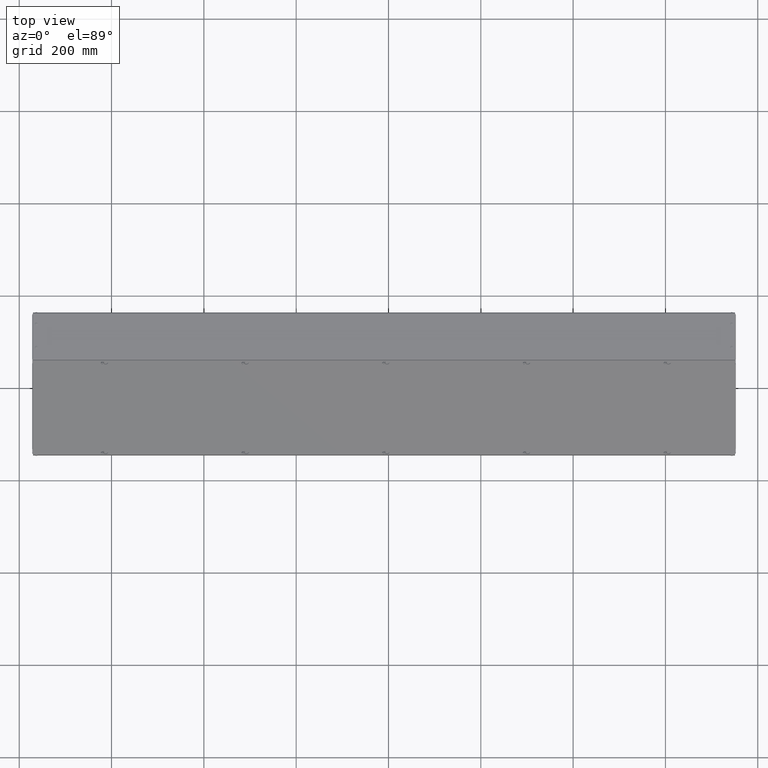
[diagram: clean part render]
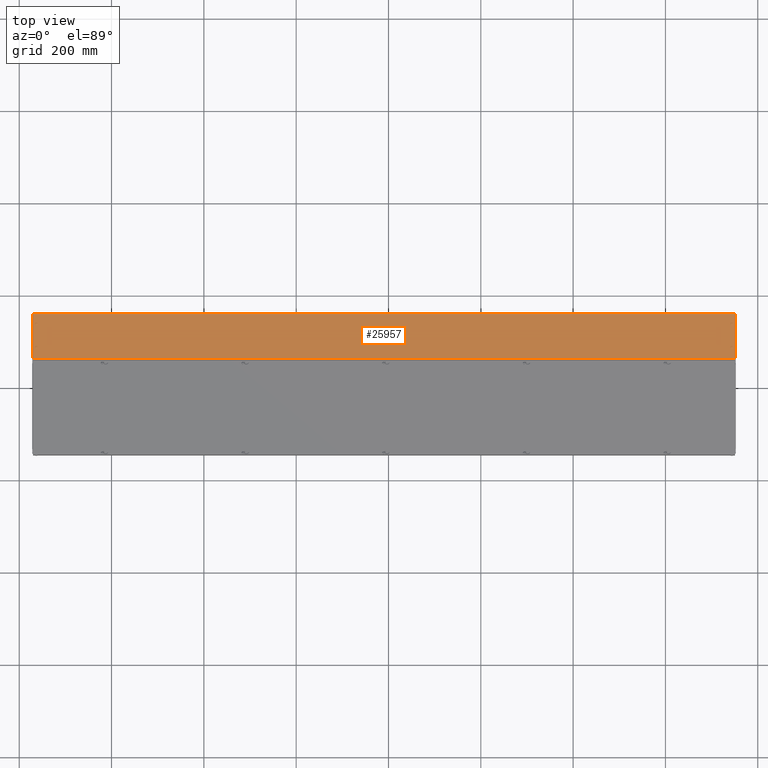
[diagram: same view with one face highlighted and labeled with its STEP entity id]
A machine part, top view. The second image highlights one B-rep face of the part: STEP entity #25957.
In plain terms, the highlighted planar face has unit normal (0, 0, 1).
Its self-contained STEP definition (entity closure, byte-faithful):
#1242 = VECTOR ( 'NONE', #27402, 39.37007874015748143 ) ;
#2030 = DIRECTION ( 'NONE',  ( 0.000000000000000000, 1.000000000000000000, -1.694169298396432862E-14 ) ) ;
#2815 = EDGE_CURVE ( 'NONE', #55557, #43516, #20926, .T. ) ;
#2878 = CIRCLE ( 'NONE', #10099, 0.06450000000000036260 ) ;
#3126 = DIRECTION ( 'NONE',  ( 0.000000000000000000, -9.450717383487159970E-15, -1.000000000000000000 ) ) ;
#3305 = EDGE_CURVE ( 'NONE', #105433, #72486, #99311, .T. ) ;
#3362 = VERTEX_POINT ( 'NONE', #65803 ) ;
#3626 = DIRECTION ( 'NONE',  ( 0.000000000000000000, 1.000000000000000000, -1.694169298396432862E-14 ) ) ;
#4112 = VERTEX_POINT ( 'NONE', #105849 ) ;
#4231 = AXIS2_PLACEMENT_3D ( 'NONE', #26990, #95260, #42786 ) ;
#6828 = DIRECTION ( 'NONE',  ( 0.000000000000000000, 1.000000000000000000, -1.694169298396432862E-14 ) ) ;
#7689 = VERTEX_POINT ( 'NONE', #15575 ) ;
#8084 = ORIENTED_EDGE ( 'NONE', *, *, #50781, .T. ) ;
#8481 = DIRECTION ( 'NONE',  ( 0.000000000000000000, 1.000000000000000000, -1.694169298396432862E-14 ) ) ;
#9028 = CARTESIAN_POINT ( 'NONE',  ( 29.33739738715530621, 5.296556077333148593, 8.999999999999998224 ) ) ;
#9196 = DIRECTION ( 'NONE',  ( 1.000000000000000000, 1.940385667701540060E-16, 5.840109280818809648E-17 ) ) ;
#9658 = EDGE_CURVE ( 'NONE', #15030, #33999, #64803, .T. ) ;
#10099 = AXIS2_PLACEMENT_3D ( 'NONE', #29928, #72000, #28249 ) ;
#10942 = CARTESIAN_POINT ( 'NONE',  ( -30.03960261284468913, 3.225556077333143090, 8.999999999999998224 ) ) ;
#11180 = EDGE_CURVE ( 'NONE', #3362, #31673, #73576, .T. ) ;
#11498 = DIRECTION ( 'NONE',  ( 0.000000000000000000, -9.450717383487159970E-15, -1.000000000000000000 ) ) ;
#11620 = DIRECTION ( 'NONE',  ( 0.000000000000000000, -9.450717383487159970E-15, -1.000000000000000000 ) ) ;
#12351 = CARTESIAN_POINT ( 'NONE',  ( 29.33739738715529555, 3.225556077333147975, 8.999999999999998224 ) ) ;
#13523 = VERTEX_POINT ( 'NONE', #17853 ) ;
#13706 = CARTESIAN_POINT ( 'NONE',  ( -30.32085261284468913, 6.124556077333132009, 8.999999999999998224 ) ) ;
#13829 = CARTESIAN_POINT ( 'NONE',  ( 29.27289738715530731, 5.225556077333152416, 8.999999999999998224 ) ) ;
#14460 = EDGE_CURVE ( 'NONE', #72486, #13523, #85357, .T. ) ;
#14609 = ORIENTED_EDGE ( 'NONE', *, *, #9658, .T. ) ;
#14864 = VECTOR ( 'NONE', #59589, 39.37007874015748143 ) ;
#15030 = VERTEX_POINT ( 'NONE', #82630 ) ;
#15257 = CARTESIAN_POINT ( 'NONE',  ( 29.27289738715530731, 3.296556077333153034, 8.999999999999998224 ) ) ;
#15574 = CARTESIAN_POINT ( 'NONE',  ( -29.97510261284469024, 5.296556077333137935, 8.999999999999998224 ) ) ;
#15575 = CARTESIAN_POINT ( 'NONE',  ( -30.10410261284469158, 3.296556077333138823, 8.999999999999998224 ) ) ;
#16249 = CARTESIAN_POINT ( 'NONE',  ( 29.27289738715530731, 3.225556077333152860, 8.999999999999998224 ) ) ;
#16465 = CARTESIAN_POINT ( 'NONE',  ( -29.97510261284469024, 3.296556077333143264, 8.999999999999998224 ) ) ;
#17008 = LINE ( 'NONE', #16465, #14864 ) ;
#17210 = LINE ( 'NONE', #34014, #62114 ) ;
#17347 = ORIENTED_EDGE ( 'NONE', *, *, #52771, .T. ) ;
#17853 = CARTESIAN_POINT ( 'NONE',  ( 29.55414738715530731, 6.124556077333145332, 9.000000000000003553 ) ) ;
#18326 = CARTESIAN_POINT ( 'NONE',  ( 29.55414738715530731, 2.317596228597067931, 9.000000000000007105 ) ) ;
#18621 = PLANE ( 'NONE',  #4231 ) ;
#19393 = EDGE_CURVE ( 'NONE', #45125, #98478, #27276, .T. ) ;
#19884 = DIRECTION ( 'NONE',  ( 0.000000000000000000, 1.000000000000000000, -1.694169298396432862E-14 ) ) ;
#20376 = VECTOR ( 'NONE', #100293, 39.37007874015748143 ) ;
#20620 = CARTESIAN_POINT ( 'NONE',  ( 29.27289738715530731, 5.361056077333152814, 8.999999999999998224 ) ) ;
#20721 = EDGE_CURVE ( 'NONE', #7689, #15030, #75574, .T. ) ;
#20926 = CIRCLE ( 'NONE', #42428, 0.06450000000000036260 ) ;
#21274 = EDGE_CURVE ( 'NONE', #13523, #72244, #83921, .T. ) ;
#21300 = ORIENTED_EDGE ( 'NONE', *, *, #27215, .T. ) ;
#22420 = AXIS2_PLACEMENT_3D ( 'NONE', #72636, #89855, #44649 ) ;
#22945 = LINE ( 'NONE', #57190, #109426 ) ;
#23025 = CARTESIAN_POINT ( 'NONE',  ( -30.32085261284468913, 2.317596228597059493, 9.000000000000007105 ) ) ;
#23645 = ORIENTED_EDGE ( 'NONE', *, *, #104315, .T. ) ;
#24790 = FACE_OUTER_BOUND ( 'NONE', #39178, .T. ) ;
#25427 = CARTESIAN_POINT ( 'NONE',  ( -0.3833526128446899661, 6.124556077333137338, 9.000000000000003553 ) ) ;
#25568 = AXIS2_PLACEMENT_3D ( 'NONE', #13829, #11620, #80476 ) ;
#25957 = ADVANCED_FACE ( 'NONE', ( #43336, #42257, #33784, #51167, #24790 ), #18621, .T. ) ;
#26990 = CARTESIAN_POINT ( 'NONE',  ( -0.3833526128446851367, 4.261072885695642576, 8.999999999999998224 ) ) ;
#27168 = AXIS2_PLACEMENT_3D ( 'NONE', #54675, #104949, #3626 ) ;
#27215 = EDGE_CURVE ( 'NONE', #31673, #53770, #38699, .T. ) ;
#27276 = LINE ( 'NONE', #102903, #109197 ) ;
#27402 = DIRECTION ( 'NONE',  ( -1.578109394559200017E-13, 1.000000000000000000, -0.000000000000000000 ) ) ;
#28249 = DIRECTION ( 'NONE',  ( 0.000000000000000000, 1.000000000000000000, -1.694169298396432862E-14 ) ) ;
#28416 = CIRCLE ( 'NONE', #82056, 0.06450000000000036260 ) ;
#29386 = DIRECTION ( 'NONE',  ( 0.000000000000000000, 1.000000000000000000, -1.694169298396432862E-14 ) ) ;
#29928 = CARTESIAN_POINT ( 'NONE',  ( 29.27289738715530731, 5.296556077333153034, 8.999999999999998224 ) ) ;
#30924 = DIRECTION ( 'NONE',  ( -1.387264802325759941E-13, 1.000000000000000000, -0.000000000000000000 ) ) ;
#31673 = VERTEX_POINT ( 'NONE', #74873 ) ;
#32001 = CARTESIAN_POINT ( 'NONE',  ( -30.03960261284468913, 5.296556077333143264, 8.999999999999998224 ) ) ;
#32167 = CARTESIAN_POINT ( 'NONE',  ( -30.10410261284468803, 3.225556077333138649, 8.999999999999998224 ) ) ;
#32374 = DIRECTION ( 'NONE',  ( 0.000000000000000000, -9.450717383487159970E-15, -1.000000000000000000 ) ) ;
#32553 = ORIENTED_EDGE ( 'NONE', *, *, #65456, .T. ) ;
#33029 = VECTOR ( 'NONE', #9196, 39.37007874015748143 ) ;
#33201 = AXIS2_PLACEMENT_3D ( 'NONE', #15257, #56214, #6828 ) ;
#33784 = FACE_BOUND ( 'NONE', #65238, .T. ) ;
#33999 = VERTEX_POINT ( 'NONE', #78424 ) ;
#34014 = CARTESIAN_POINT ( 'NONE',  ( 29.20839738715530842, 3.225556077333152860, 8.999999999999998224 ) ) ;
#34210 = CARTESIAN_POINT ( 'NONE',  ( -30.32085261284468913, 6.124556077333134674, 8.999999999999998224 ) ) ;
#34510 = CARTESIAN_POINT ( 'NONE',  ( -29.97510261284469735, 5.225556077333138205, 8.999999999999998224 ) ) ;
#34711 = DIRECTION ( 'NONE',  ( -1.573904515877000109E-13, -1.000000000000000000, -0.000000000000000000 ) ) ;
#34721 = DIRECTION ( 'NONE',  ( 0.000000000000000000, -9.450717383487159970E-15, -1.000000000000000000 ) ) ;
#35857 = LINE ( 'NONE', #103022, #1242 ) ;
#36365 = VERTEX_POINT ( 'NONE', #39749 ) ;
#36668 = VECTOR ( 'NONE', #30924, 39.37007874015748143 ) ;
#36852 = CIRCLE ( 'NONE', #108294, 0.06450000000000036260 ) ;
#36899 = DIRECTION ( 'NONE',  ( 0.000000000000000000, -9.450717383487159970E-15, -1.000000000000000000 ) ) ;
#37741 = ORIENTED_EDGE ( 'NONE', *, *, #2815, .T. ) ;
#37923 = CARTESIAN_POINT ( 'NONE',  ( 29.27289738715530731, 3.361056077333153258, 8.999999999999998224 ) ) ;
#38699 = CIRCLE ( 'NONE', #44129, 0.06450000000000036260 ) ;
#38826 = ORIENTED_EDGE ( 'NONE', *, *, #11180, .T. ) ;
#39178 = EDGE_LOOP ( 'NONE', ( #107763, #47431, #51478, #77669 ) ) ;
#39749 = CARTESIAN_POINT ( 'NONE',  ( 29.20839738715529776, 5.296556077333148593, 8.999999999999998224 ) ) ;
#42079 = EDGE_CURVE ( 'NONE', #43516, #65782, #43365, .T. ) ;
#42257 = FACE_BOUND ( 'NONE', #55062, .T. ) ;
#42428 = AXIS2_PLACEMENT_3D ( 'NONE', #109039, #32374, #66617 ) ;
#42786 = DIRECTION ( 'NONE',  ( 0.000000000000000000, -1.000000000000000000, 1.046871212840690179E-14 ) ) ;
#43336 = FACE_BOUND ( 'NONE', #82172, .T. ) ;
#43365 = LINE ( 'NONE', #94190, #101955 ) ;
#43516 = VERTEX_POINT ( 'NONE', #100248 ) ;
#44129 = AXIS2_PLACEMENT_3D ( 'NONE', #32001, #100280, #8481 ) ;
#44184 = DIRECTION ( 'NONE',  ( -1.573904515877000109E-13, -1.000000000000000000, -0.000000000000000000 ) ) ;
#44649 = DIRECTION ( 'NONE',  ( 0.000000000000000000, 1.000000000000000000, -1.694169298396432862E-14 ) ) ;
#45001 = DIRECTION ( 'NONE',  ( -1.573904515877000109E-13, -1.000000000000000000, -0.000000000000000000 ) ) ;
#45077 = EDGE_CURVE ( 'NONE', #83176, #7689, #64027, .T. ) ;
#45125 = VERTEX_POINT ( 'NONE', #9028 ) ;
#45729 = EDGE_CURVE ( 'NONE', #4112, #55557, #45811, .T. ) ;
#45811 = CIRCLE ( 'NONE', #33201, 0.06450000000000036260 ) ;
#47431 = ORIENTED_EDGE ( 'NONE', *, *, #3305, .F. ) ;
#47856 = CARTESIAN_POINT ( 'NONE',  ( -30.03960261284468913, 5.361056077333143044, 8.999999999999998224 ) ) ;
#50425 = ORIENTED_EDGE ( 'NONE', *, *, #20721, .T. ) ;
#50781 = EDGE_CURVE ( 'NONE', #84675, #102739, #22945, .T. ) ;
#51167 = FACE_BOUND ( 'NONE', #92500, .T. ) ;
#51478 = ORIENTED_EDGE ( 'NONE', *, *, #60899, .T. ) ;
#51496 = DIRECTION ( 'NONE',  ( -4.525148777687419622E-18, -1.000000000000000000, 6.137797495075951391E-34 ) ) ;
#52771 = EDGE_CURVE ( 'NONE', #102739, #3362, #65427, .T. ) ;
#53101 = AXIS2_PLACEMENT_3D ( 'NONE', #54157, #3126, #2030 ) ;
#53770 = VERTEX_POINT ( 'NONE', #47856 ) ;
#54157 = CARTESIAN_POINT ( 'NONE',  ( -30.03960261284468913, 5.296556077333143264, 8.999999999999998224 ) ) ;
#54417 = VECTOR ( 'NONE', #51496, 39.37007874015748143 ) ;
#54579 = EDGE_CURVE ( 'NONE', #68353, #4112, #17210, .T. ) ;
#54675 = CARTESIAN_POINT ( 'NONE',  ( -30.03960261284468913, 3.296556077333143264, 8.999999999999998224 ) ) ;
#55062 = EDGE_LOOP ( 'NONE', ( #23645, #58042, #59809, #110341, #80289 ) ) ;
#55155 = VERTEX_POINT ( 'NONE', #20620 ) ;
#55557 = VERTEX_POINT ( 'NONE', #37923 ) ;
#56190 = CARTESIAN_POINT ( 'NONE',  ( -30.10410261284468803, 3.225556077333143090, 8.999999999999998224 ) ) ;
#56214 = DIRECTION ( 'NONE',  ( 0.000000000000000000, -9.450717383487159970E-15, -1.000000000000000000 ) ) ;
#56383 = VERTEX_POINT ( 'NONE', #62384 ) ;
#57190 = CARTESIAN_POINT ( 'NONE',  ( -29.97510261284469024, 5.296556077333143264, 8.999999999999998224 ) ) ;
#58042 = ORIENTED_EDGE ( 'NONE', *, *, #95391, .T. ) ;
#58400 = CARTESIAN_POINT ( 'NONE',  ( -30.10410261284468803, 5.225556077333142646, 8.999999999999998224 ) ) ;
#58701 = ORIENTED_EDGE ( 'NONE', *, *, #45729, .T. ) ;
#59589 = DIRECTION ( 'NONE',  ( -1.573904515877000109E-13, -1.000000000000000000, -0.000000000000000000 ) ) ;
#59698 = EDGE_CURVE ( 'NONE', #53770, #84675, #97657, .T. ) ;
#59809 = ORIENTED_EDGE ( 'NONE', *, *, #19393, .T. ) ;
#60096 = EDGE_CURVE ( 'NONE', #65782, #68353, #63892, .T. ) ;
#60433 = CARTESIAN_POINT ( 'NONE',  ( 29.55414738715530731, 6.124556077333141779, 8.999999999999998224 ) ) ;
#60899 = EDGE_CURVE ( 'NONE', #105433, #72244, #105046, .T. ) ;
#62114 = VECTOR ( 'NONE', #110637, 39.37007874015748143 ) ;
#62384 = CARTESIAN_POINT ( 'NONE',  ( -29.97510261284469735, 3.225556077333138205, 8.999999999999998224 ) ) ;
#63892 = CIRCLE ( 'NONE', #92391, 0.06450000000000036260 ) ;
#64027 = LINE ( 'NONE', #56190, #20376 ) ;
#64803 = CIRCLE ( 'NONE', #27168, 0.06450000000000036260 ) ;
#64858 = AXIS2_PLACEMENT_3D ( 'NONE', #98190, #11498, #29386 ) ;
#65086 = CARTESIAN_POINT ( 'NONE',  ( 29.20839738715530842, 3.225556077333147975, 8.999999999999998224 ) ) ;
#65238 = EDGE_LOOP ( 'NONE', ( #50425, #14609, #67386, #32553, #73113 ) ) ;
#65427 = CIRCLE ( 'NONE', #22420, 0.06450000000000036260 ) ;
#65456 = EDGE_CURVE ( 'NONE', #56383, #83176, #36852, .T. ) ;
#65782 = VERTEX_POINT ( 'NONE', #12351 ) ;
#65803 = CARTESIAN_POINT ( 'NONE',  ( -30.10410261284468803, 5.225556077333138205, 8.999999999999998224 ) ) ;
#66617 = DIRECTION ( 'NONE',  ( 0.000000000000000000, 1.000000000000000000, -1.694169298396432862E-14 ) ) ;
#67386 = ORIENTED_EDGE ( 'NONE', *, *, #85260, .T. ) ;
#68353 = VERTEX_POINT ( 'NONE', #65086 ) ;
#69918 = CARTESIAN_POINT ( 'NONE',  ( -0.3833526128446851367, 2.317596228597063046, 9.000000000000019540 ) ) ;
#70088 = VERTEX_POINT ( 'NONE', #83706 ) ;
#72000 = DIRECTION ( 'NONE',  ( 0.000000000000000000, -9.450717383487159970E-15, -1.000000000000000000 ) ) ;
#72244 = VERTEX_POINT ( 'NONE', #18326 ) ;
#72486 = VERTEX_POINT ( 'NONE', #34210 ) ;
#72636 = CARTESIAN_POINT ( 'NONE',  ( -30.03960261284468913, 5.225556077333142646, 8.999999999999998224 ) ) ;
#73113 = ORIENTED_EDGE ( 'NONE', *, *, #45077, .T. ) ;
#73576 = LINE ( 'NONE', #58400, #36668 ) ;
#74825 = ORIENTED_EDGE ( 'NONE', *, *, #54579, .T. ) ;
#74873 = CARTESIAN_POINT ( 'NONE',  ( -30.10410261284469158, 5.296556077333139712, 8.999999999999998224 ) ) ;
#75444 = CARTESIAN_POINT ( 'NONE',  ( 29.33739738715529555, 5.225556077333147975, 8.999999999999998224 ) ) ;
#75574 = CIRCLE ( 'NONE', #64858, 0.06450000000000036260 ) ;
#76643 = ORIENTED_EDGE ( 'NONE', *, *, #59698, .T. ) ;
#77669 = ORIENTED_EDGE ( 'NONE', *, *, #21274, .F. ) ;
#78424 = CARTESIAN_POINT ( 'NONE',  ( -29.97510261284469024, 3.296556077333137491, 8.999999999999998224 ) ) ;
#80289 = ORIENTED_EDGE ( 'NONE', *, *, #101665, .T. ) ;
#80476 = DIRECTION ( 'NONE',  ( 0.000000000000000000, 1.000000000000000000, -1.694169298396432862E-14 ) ) ;
#81910 = VECTOR ( 'NONE', #108239, 39.37007874015748143 ) ;
#82055 = VECTOR ( 'NONE', #88253, 39.37007874015748143 ) ;
#82056 = AXIS2_PLACEMENT_3D ( 'NONE', #91470, #36899, #96139 ) ;
#82172 = EDGE_LOOP ( 'NONE', ( #21300, #76643, #8084, #17347, #38826 ) ) ;
#82630 = CARTESIAN_POINT ( 'NONE',  ( -30.03960261284468913, 3.361056077333143488, 8.999999999999998224 ) ) ;
#83176 = VERTEX_POINT ( 'NONE', #32167 ) ;
#83706 = CARTESIAN_POINT ( 'NONE',  ( 29.20839738715530842, 5.225556077333147975, 8.999999999999998224 ) ) ;
#83921 = LINE ( 'NONE', #60433, #54417 ) ;
#83966 = ORIENTED_EDGE ( 'NONE', *, *, #60096, .T. ) ;
#84675 = VERTEX_POINT ( 'NONE', #15574 ) ;
#85260 = EDGE_CURVE ( 'NONE', #33999, #56383, #17008, .T. ) ;
#85357 = LINE ( 'NONE', #25427, #33029 ) ;
#88253 = DIRECTION ( 'NONE',  ( 1.000000000000000000, -2.546617800457158228E-31, -2.432598937883580246E-17 ) ) ;
#89855 = DIRECTION ( 'NONE',  ( 0.000000000000000000, -9.450717383487159970E-15, -1.000000000000000000 ) ) ;
#91470 = CARTESIAN_POINT ( 'NONE',  ( 29.27289738715530731, 5.296556077333153034, 8.999999999999998224 ) ) ;
#92391 = AXIS2_PLACEMENT_3D ( 'NONE', #16249, #34721, #101864 ) ;
#92500 = EDGE_LOOP ( 'NONE', ( #58701, #37741, #96069, #83966, #74825 ) ) ;
#94190 = CARTESIAN_POINT ( 'NONE',  ( 29.33739738715530621, 3.296556077333153034, 8.999999999999998224 ) ) ;
#95260 = DIRECTION ( 'NONE',  ( 2.432598937883580246E-17, 1.046871212840690179E-14, 1.000000000000000000 ) ) ;
#95391 = EDGE_CURVE ( 'NONE', #55155, #45125, #28416, .T. ) ;
#96069 = ORIENTED_EDGE ( 'NONE', *, *, #42079, .T. ) ;
#96139 = DIRECTION ( 'NONE',  ( 0.000000000000000000, 1.000000000000000000, -1.694169298396432862E-14 ) ) ;
#96530 = DIRECTION ( 'NONE',  ( 0.000000000000000000, -9.450717383487159970E-15, -1.000000000000000000 ) ) ;
#97657 = CIRCLE ( 'NONE', #53101, 0.06450000000000036260 ) ;
#98190 = CARTESIAN_POINT ( 'NONE',  ( -30.03960261284468913, 3.296556077333143264, 8.999999999999998224 ) ) ;
#98478 = VERTEX_POINT ( 'NONE', #75444 ) ;
#99311 = LINE ( 'NONE', #13706, #81910 ) ;
#100248 = CARTESIAN_POINT ( 'NONE',  ( 29.33739738715530621, 3.296556077333147261, 8.999999999999998224 ) ) ;
#100280 = DIRECTION ( 'NONE',  ( 0.000000000000000000, -9.450717383487159970E-15, -1.000000000000000000 ) ) ;
#100293 = DIRECTION ( 'NONE',  ( -1.387264802325759941E-13, 1.000000000000000000, -0.000000000000000000 ) ) ;
#100689 = CIRCLE ( 'NONE', #25568, 0.06450000000000036260 ) ;
#101665 = EDGE_CURVE ( 'NONE', #70088, #36365, #35857, .T. ) ;
#101864 = DIRECTION ( 'NONE',  ( 0.000000000000000000, 1.000000000000000000, -1.694169298396432862E-14 ) ) ;
#101944 = EDGE_CURVE ( 'NONE', #98478, #70088, #100689, .T. ) ;
#101955 = VECTOR ( 'NONE', #45001, 39.37007874015748143 ) ;
#102739 = VERTEX_POINT ( 'NONE', #34510 ) ;
#102903 = CARTESIAN_POINT ( 'NONE',  ( 29.33739738715530621, 5.296556077333153034, 8.999999999999998224 ) ) ;
#103022 = CARTESIAN_POINT ( 'NONE',  ( 29.20839738715530842, 5.225556077333152416, 8.999999999999998224 ) ) ;
#104315 = EDGE_CURVE ( 'NONE', #36365, #55155, #2878, .T. ) ;
#104949 = DIRECTION ( 'NONE',  ( 0.000000000000000000, -9.450717383487159970E-15, -1.000000000000000000 ) ) ;
#105046 = LINE ( 'NONE', #69918, #82055 ) ;
#105433 = VERTEX_POINT ( 'NONE', #23025 ) ;
#105849 = CARTESIAN_POINT ( 'NONE',  ( 29.20839738715529776, 3.296556077333148149, 8.999999999999998224 ) ) ;
#107763 = ORIENTED_EDGE ( 'NONE', *, *, #14460, .F. ) ;
#108239 = DIRECTION ( 'NONE',  ( -1.940385667701499877E-16, 1.000000000000000000, -0.000000000000000000 ) ) ;
#108294 = AXIS2_PLACEMENT_3D ( 'NONE', #10942, #96530, #19884 ) ;
#109039 = CARTESIAN_POINT ( 'NONE',  ( 29.27289738715530731, 3.296556077333153034, 8.999999999999998224 ) ) ;
#109197 = VECTOR ( 'NONE', #44184, 39.37007874015748143 ) ;
#109426 = VECTOR ( 'NONE', #34711, 39.37007874015748143 ) ;
#110341 = ORIENTED_EDGE ( 'NONE', *, *, #101944, .T. ) ;
#110637 = DIRECTION ( 'NONE',  ( -1.578109394559200017E-13, 1.000000000000000000, -0.000000000000000000 ) ) ;